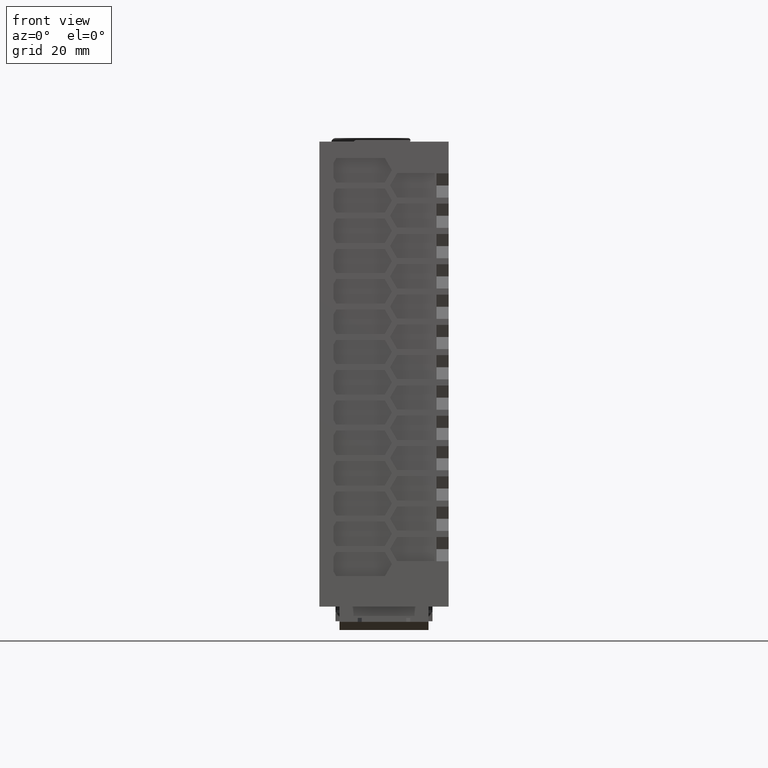
[diagram: clean part render]
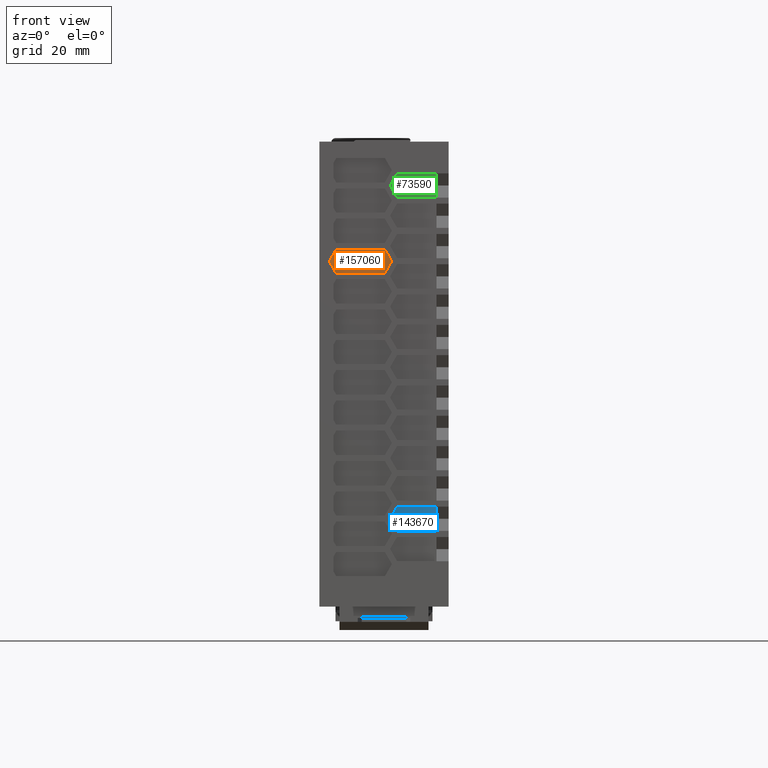
[diagram: same view with three faces highlighted in distinct colors, each labeled with its STEP entity id]
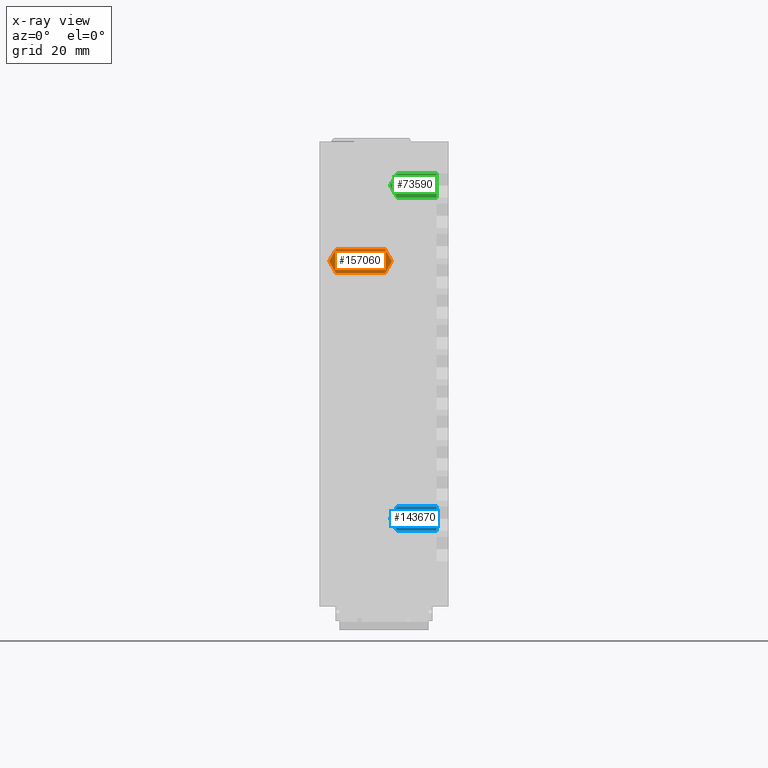
[diagram: x-ray of the same camera — body ghosted, the three highlighted faces saturated]
A machine part, front view with three faces highlighted in distinct colors.
The next image is the same camera in x-ray (body ghosted, the three faces saturated) — at least one of them is partly hidden behind the body in this view.
Their STEP definitions:

[orange] entity #157060 — the highlighted planar face has unit normal (0, 1, 0).
#155590=CARTESIAN_POINT('',(16.2009491924313,-62.,-25.5000000000005));
#155600=VERTEX_POINT('',#155590);
#155630=CARTESIAN_POINT('',(16.2009491924304,-62.,-25.5000000000006));
#155640=DIRECTION('',(-1.,0.,0.));
#155650=VECTOR('',#155640,1.);
#155660=LINE('',#155630,#155650);
#155670=CARTESIAN_POINT('',(4.16505080757037,-62.,-25.5000000000006));
#155680=VERTEX_POINT('',#155670);
#155690=EDGE_CURVE('',#155600,#155680,#155660,.T.);
#155900=CARTESIAN_POINT('',(2.43300000000031,-62.,-28.5000000000008));
#155910=VERTEX_POINT('',#155900);
#155940=CARTESIAN_POINT('',(2.43300000000037,-62.,-28.5000000000006));
#155950=DIRECTION('',(0.500000000000017,0.,-0.866025403784429));
#155960=VECTOR('',#155950,1.);
#155970=LINE('',#155940,#155960);
#155980=CARTESIAN_POINT('',(4.16505080756943,-62.,-31.5000000000008));
#155990=VERTEX_POINT('',#155980);
#156000=EDGE_CURVE('',#155910,#155990,#155970,.T.);
#156210=CARTESIAN_POINT('',(16.2009491924294,-62.,-31.5000000000006));
#156220=VERTEX_POINT('',#156210);
#156250=CARTESIAN_POINT('',(16.2009491924304,-62.,-31.5000000000006));
#156260=DIRECTION('',(0.500000000000017,0.,0.866025403784429));
#156270=VECTOR('',#156260,1.);
#156280=LINE('',#156250,#156270);
#156290=CARTESIAN_POINT('',(17.9329999999994,-62.,-28.5000000000005));
#156300=VERTEX_POINT('',#156290);
#156310=EDGE_CURVE('',#156220,#156300,#156280,.T.);
#156490=CARTESIAN_POINT('',(4.16505080756937,-62.,-31.5000000000006));
#156500=DIRECTION('',(1.,0.,0.));
#156510=VECTOR('',#156500,1.);
#156520=LINE('',#156490,#156510);
#156530=EDGE_CURVE('',#155990,#156220,#156520,.T.);
#156660=CARTESIAN_POINT('',(4.16505080756937,-62.,-25.5000000000006));
#156670=DIRECTION('',(-0.500000000000017,0.,-0.866025403784429));
#156680=VECTOR('',#156670,1.);
#156690=LINE('',#156660,#156680);
#156700=EDGE_CURVE('',#155680,#155910,#156690,.T.);
#156830=CARTESIAN_POINT('',(17.9330000000004,-62.,-28.5000000000006));
#156840=DIRECTION('',(-0.500000000000017,0.,0.866025403784429));
#156850=VECTOR('',#156840,1.);
#156860=LINE('',#156830,#156850);
#156870=EDGE_CURVE('',#156300,#155600,#156860,.T.);
#156930=CARTESIAN_POINT('',(20.4796640649271,-62.,-4.61828725483505));
#156940=DIRECTION('',(0.,1.,-0.));
#156950=DIRECTION('',(-1.,0.,0.));
#156960=AXIS2_PLACEMENT_3D('',#156930,#156940,#156950);
#156970=PLANE('',#156960);
#156980=ORIENTED_EDGE('',*,*,#156530,.T.);
#156990=ORIENTED_EDGE('',*,*,#156000,.T.);
#157000=ORIENTED_EDGE('',*,*,#156700,.T.);
#157010=ORIENTED_EDGE('',*,*,#155690,.T.);
#157020=ORIENTED_EDGE('',*,*,#156870,.T.);
#157030=ORIENTED_EDGE('',*,*,#156310,.T.);
#157040=EDGE_LOOP('',(#157030,#157020,#157010,#157000,#156990,#156980));
#157050=FACE_OUTER_BOUND('',#157040,.T.);
#157060=ADVANCED_FACE('',(#157050),#156970,.F.);

[blue] entity #143670 — the highlighted planar face has unit normal (0, 1, 0).
#3450=CARTESIAN_POINT('',(19.2320508075704,-62.,-89.2500000000007));
#3460=VERTEX_POINT('',#3450);
#3490=CARTESIAN_POINT('',(19.2320508075704,-62.,-89.2500000000007));
#3500=DIRECTION('',(-0.500000000000017,0.,-0.866025403784429));
#3510=VECTOR('',#3500,1.);
#3520=LINE('',#3490,#3510);
#3530=CARTESIAN_POINT('',(17.5000000000013,-62.,-92.2500000000008));
#3540=VERTEX_POINT('',#3530);
#3550=EDGE_CURVE('',#3460,#3540,#3520,.T.);
#65380=CARTESIAN_POINT('',(29.0000000000004,-62.,-95.2500000000007));
#65390=VERTEX_POINT('',#65380);
#65420=CARTESIAN_POINT('',(29.0000000000004,-62.,0.));
#65430=DIRECTION('',(0.,0.,1.));
#65440=VECTOR('',#65430,1.);
#65450=LINE('',#65420,#65440);
#65460=CARTESIAN_POINT('',(29.0000000000004,-62.,-89.2500000000005));
#65470=VERTEX_POINT('',#65460);
#65480=EDGE_CURVE('',#65390,#65470,#65450,.T.);
#87750=CARTESIAN_POINT('',(30.5000000000004,-62.,-89.2500000000007));
#87760=DIRECTION('',(-1.,0.,0.));
#87770=VECTOR('',#87760,1.);
#87780=LINE('',#87750,#87770);
#87790=EDGE_CURVE('',#65470,#3460,#87780,.T.);
#103290=CARTESIAN_POINT('',(19.2320508075694,-62.,-95.2500000000008));
#103300=VERTEX_POINT('',#103290);
#103330=CARTESIAN_POINT('',(30.5000000000004,-62.,-95.2500000000007));
#103340=DIRECTION('',(-1.,0.,0.));
#103350=VECTOR('',#103340,1.);
#103360=LINE('',#103330,#103350);
#103370=EDGE_CURVE('',#65390,#103300,#103360,.T.);
#138200=CARTESIAN_POINT('',(17.5000000000004,-62.,-92.2500000000007));
#138210=DIRECTION('',(0.500000000000017,0.,-0.866025403784429));
#138220=VECTOR('',#138210,1.);
#138230=LINE('',#138200,#138220);
#138240=EDGE_CURVE('',#3540,#103300,#138230,.T.);
#143550=CARTESIAN_POINT('',(20.4796640649271,-62.,-4.61828725483505));
#143560=DIRECTION('',(0.,1.,-0.));
#143570=DIRECTION('',(-1.,0.,0.));
#143580=AXIS2_PLACEMENT_3D('',#143550,#143560,#143570);
#143590=PLANE('',#143580);
#143600=ORIENTED_EDGE('',*,*,#65480,.T.);
#143610=ORIENTED_EDGE('',*,*,#103370,.F.);
#143620=ORIENTED_EDGE('',*,*,#138240,.T.);
#143630=ORIENTED_EDGE('',*,*,#3550,.T.);
#143640=ORIENTED_EDGE('',*,*,#87790,.T.);
#143650=EDGE_LOOP('',(#143640,#143630,#143620,#143610,#143600));
#143660=FACE_OUTER_BOUND('',#143650,.T.);
#143670=ADVANCED_FACE('',(#143660),#143590,.F.);

[green] entity #73590 — the highlighted planar face has unit normal (0, 1, 0).
#33140=CARTESIAN_POINT('',(30.5000000000004,-62.,-6.75000000000065));
#33150=DIRECTION('',(-1.,0.,0.));
#33160=VECTOR('',#33150,1.);
#33170=LINE('',#33140,#33160);
#33180=CARTESIAN_POINT('',(29.0000000000004,-62.,-6.75000000000047));
#33190=VERTEX_POINT('',#33180);
#33200=CARTESIAN_POINT('',(19.2320508075704,-62.,-6.75000000000065));
#33210=VERTEX_POINT('',#33200);
#33220=EDGE_CURVE('',#33190,#33210,#33170,.T.);
#38870=CARTESIAN_POINT('',(29.0000000000004,-62.,-12.7500000000007));
#38880=VERTEX_POINT('',#38870);
#38910=CARTESIAN_POINT('',(29.0000000000004,-62.,0.));
#38920=DIRECTION('',(0.,0.,1.));
#38930=VECTOR('',#38920,1.);
#38940=LINE('',#38910,#38930);
#38950=EDGE_CURVE('',#38880,#33190,#38940,.T.);
#73280=CARTESIAN_POINT('',(20.4796640649271,-62.,-4.61828725483505));
#73290=DIRECTION('',(0.,1.,-0.));
#73300=DIRECTION('',(-1.,0.,0.));
#73310=AXIS2_PLACEMENT_3D('',#73280,#73290,#73300);
#73320=PLANE('',#73310);
#73330=ORIENTED_EDGE('',*,*,#38950,.T.);
#73340=CARTESIAN_POINT('',(30.5000000000004,-62.,-12.7500000000007));
#73350=DIRECTION('',(-1.,0.,0.));
#73360=VECTOR('',#73350,1.);
#73370=LINE('',#73340,#73360);
#73380=CARTESIAN_POINT('',(19.2320508075694,-62.,-12.7500000000008));
#73390=VERTEX_POINT('',#73380);
#73400=EDGE_CURVE('',#38880,#73390,#73370,.T.);
#73410=ORIENTED_EDGE('',*,*,#73400,.F.);
#73420=CARTESIAN_POINT('',(17.5000000000004,-62.,-9.75000000000065));
#73430=DIRECTION('',(0.500000000000017,0.,-0.866025403784429));
#73440=VECTOR('',#73430,1.);
#73450=LINE('',#73420,#73440);
#73460=CARTESIAN_POINT('',(17.5000000000013,-62.,-9.75000000000083));
#73470=VERTEX_POINT('',#73460);
#73480=EDGE_CURVE('',#73470,#73390,#73450,.T.);
#73490=ORIENTED_EDGE('',*,*,#73480,.T.);
#73500=CARTESIAN_POINT('',(19.2320508075704,-62.,-6.75000000000065));
#73510=DIRECTION('',(-0.500000000000017,0.,-0.866025403784429));
#73520=VECTOR('',#73510,1.);
#73530=LINE('',#73500,#73520);
#73540=EDGE_CURVE('',#33210,#73470,#73530,.T.);
#73550=ORIENTED_EDGE('',*,*,#73540,.T.);
#73560=ORIENTED_EDGE('',*,*,#33220,.T.);
#73570=EDGE_LOOP('',(#73560,#73550,#73490,#73410,#73330));
#73580=FACE_OUTER_BOUND('',#73570,.T.);
#73590=ADVANCED_FACE('',(#73580),#73320,.F.);